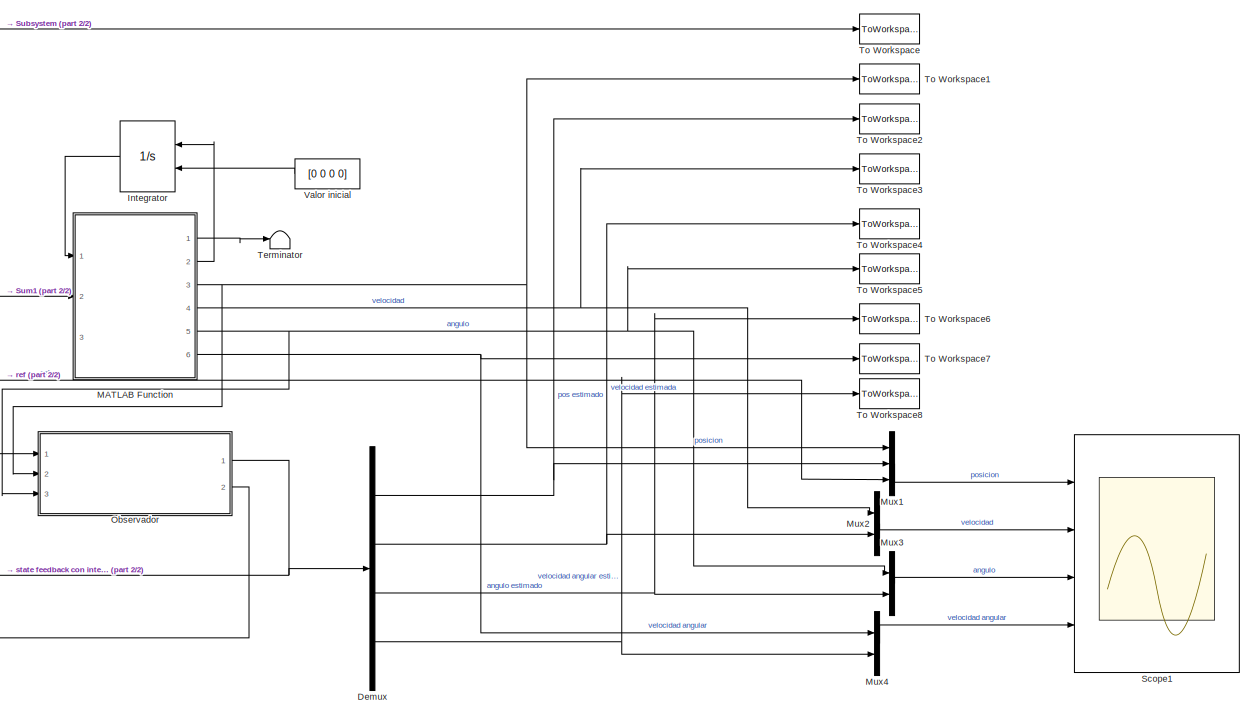
[diagram: root canvas - part 1/2, middle right region]
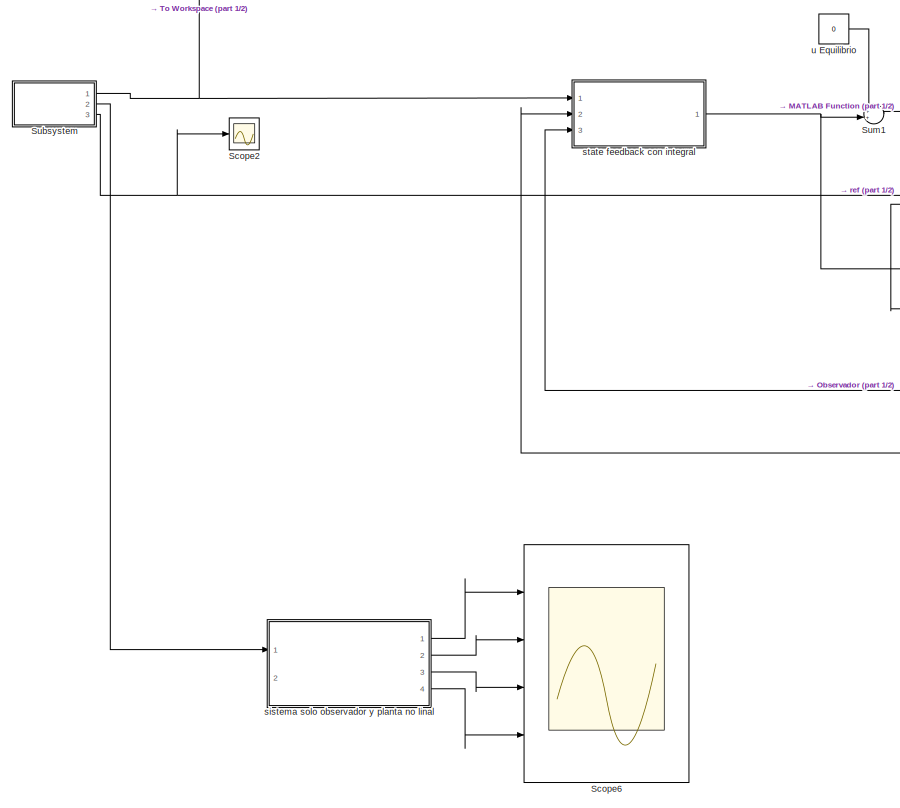
[diagram: root canvas - part 2/2, left side, full height]
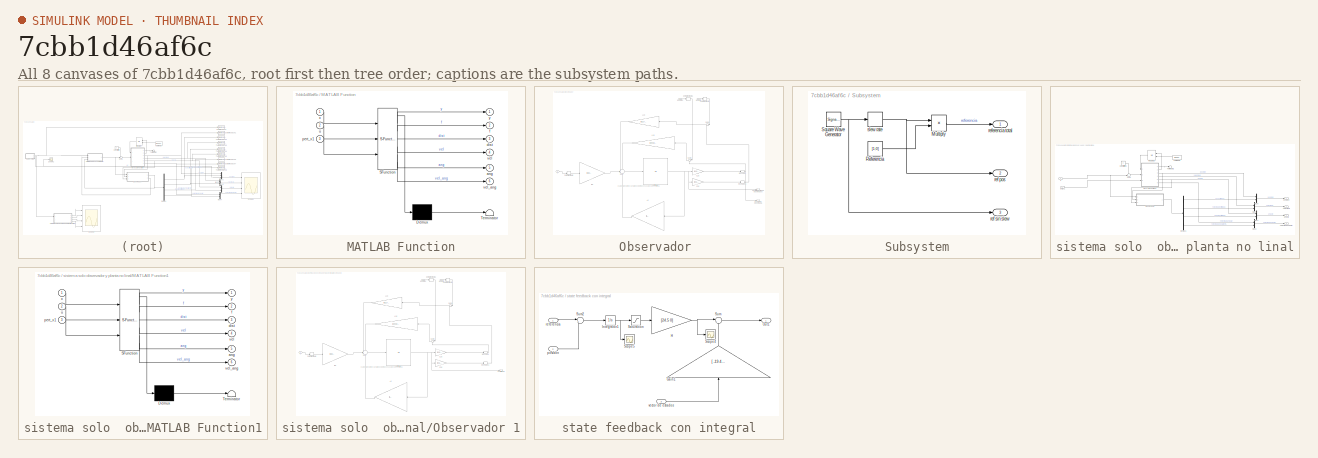
[diagram: thumbnail index - all 8 canvases of the model, root first then tree order]
MODEL slx_7cbb1d46af6c
KIND model
CONFIG AbsTol = auto
CONFIG EnableMultiTasking = off
CONFIG FixedStep = 0.02
CONFIG MaxStep = auto
CONFIG MinStep = auto
CONFIG RelTol = 1e-3
CONFIG SampleTimeConstraint = Unconstrained
CONFIG Solver = ode4
CONFIG SolverName = ode4
CONFIG StartTime = 0.0
CONFIG StopTime = 50
BLOCK [Demux] Demux
  Ports = [1, 4]
BLOCK [Integrator] Integrator
  InitialConditionSource = external
  Ports = [2, 1]
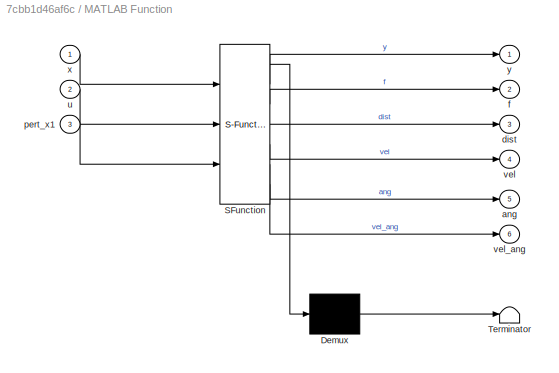
BLOCK [SubSystem] MATLAB Function
  ErrorFcn = Stateflow.Translate.translate
  PermitHierarchicalResolution = ExplicitOnly
  Ports = [3, 6]
  SFBlockType = MATLAB Function
  TreatAsAtomicUnit = on
BLOCK [Demux] MATLAB Function/ Demux 
  Outputs = 1
  Ports = [1, 1]
BLOCK [S-Function] MATLAB Function/ SFunction 
  EnableBusSupport = on
  FunctionName = sf_sfun
  PortCounts = [3 7]
  Ports = [3, 7]
  SFcnIsStateOwnerBlock = off
  SFunctionDeploymentMode = off
  Tag = Stateflow S-Function simulink_Feedback_integral2017 2
BLOCK [Terminator] MATLAB Function/ Terminator 
BLOCK [Outport] MATLAB Function/ang
  Port = 5
BLOCK [Outport] MATLAB Function/dist
  Port = 3
BLOCK [Outport] MATLAB Function/f
  Port = 2
BLOCK [Inport] MATLAB Function/pert_x1
  Port = 3
BLOCK [Inport] MATLAB Function/u
  Port = 2
BLOCK [Outport] MATLAB Function/vel
  Port = 4
BLOCK [Outport] MATLAB Function/vel_ang
  Port = 6
BLOCK [Inport] MATLAB Function/x
BLOCK [Outport] MATLAB Function/y
BLOCK [Mux] Mux1
  DisplayOption = bar
  Inputs = 3
  Ports = [3, 1]
BLOCK [Mux] Mux2
  DisplayOption = bar
  Inputs = 2
  Ports = [2, 1]
BLOCK [Mux] Mux3
  DisplayOption = bar
  Inputs = 2
  Ports = [2, 1]
BLOCK [Mux] Mux4
  DisplayOption = bar
  Inputs = 2
  Ports = [2, 1]
BLOCK [SubSystem] Observador 
  Ports = [3, 2]
BLOCK [Gain] Observador /Ad
  Gain = [ [ 1, 0.02, 0, 0 ];[ 0, 0.9238, 0.1756, 0 ];\n[ 0, 0, 1.0000, 0.0200 ]; [ 0, 0, -3.0896, 0.5852 ] ]
  Multiplication = Matrix(K*u)
BLOCK [Gain] Observador /Bd
  Gain = [0;0;0;1.2978]
  Multiplication = Matrix(K*u)
BLOCK [Gain] Observador /C1d
  Gain = [1 0 0 0]
  Multiplication = Matrix(K*u)
BLOCK [Gain] Observador /C2d
  Gain = [0 0 1 0]
  Multiplication = Matrix(K*u)
BLOCK [Gain] Observador /L1d
  Gain = [0;0.1756;0.6551;-2.4737]
BLOCK [Gain] Observador /L2d
  Gain = [0.9938;10.4178;0;0]
BLOCK [Reshape] Observador /Reshape
  Ports = [1, 1]
BLOCK [Reshape] Observador /Reshape1
  OutputDimensions = [1]
  Ports = [1, 1]
BLOCK [Sum] Observador /Sum
  Inputs = ++|+|+
  Ports = [4, 1]
BLOCK [Sum] Observador /Sum3
  Inputs = |+-
  Ports = [2, 1]
BLOCK [Sum] Observador /Sum4
  Inputs = |+-
  Ports = [2, 1]
BLOCK [UnitDelay] Observador /Unit Delay
  HasFrameUpgradeWarning = on
  SampleTime = 0.02
BLOCK [ZeroOrderHold] Observador /Zero-Order Hold
  SampleTime = 0.02
BLOCK [ZeroOrderHold] Observador /Zero-Order Hold1
  SampleTime = 0.02
BLOCK [ZeroOrderHold] Observador /Zero-Order Hold2
  SampleTime = 0.02
BLOCK [Inport] Observador /angulo
  Port = 3
BLOCK [Outport] Observador /poscición observada
  Port = 2
BLOCK [Inport] Observador /posicion
  Port = 2
BLOCK [Inport] Observador /u
BLOCK [Outport] Observador /vector de estados observados
BLOCK [Scope] Scope1
  Floating = off
  NumInputPorts = 4
  Ports = [4]
  ScopeSpecificationString = Simulink.scopes.TimeScopeBlockCfg('CurrentConfiguration', extmgr.ConfigurationSet(extmgr.Configuration('Core','General UI',true,'FigureColor',[0.8 0.8 0.8]),extmgr.Configuration('Core','Source UI',true),extmgr.Configuration('Sources','WiredSimulink',true,'DataLoggingVariableName','ScopeData1'),extmgr.Configuration('Visuals','Time Domain',true,'SerializedDisplays',{struct('MinYLimReal','-0.09984','...<+5064ch>
BLOCK [Scope] Scope2
  Floating = off
  NumInputPorts = 1
  Ports = [1]
  ScopeSpecificationString = Simulink.scopes.TimeScopeBlockCfg('CurrentConfiguration', extmgr.ConfigurationSet(extmgr.Configuration('Core','General UI',true),extmgr.Configuration('Core','Source UI',true),extmgr.Configuration('Sources','WiredSimulink',true,'DataLoggingVariableName','ScopeData2'),extmgr.Configuration('Visuals','Time Domain',true,'SerializedDisplays',{struct('MinYLimReal','-0.1','MaxYLimReal','0.1','YLabelReal',...<+1365ch>
BLOCK [Scope] Scope6
  Floating = off
  NumInputPorts = 4
  Ports = [4]
  ScopeSpecificationString = Simulink.scopes.TimeScopeBlockCfg('CurrentConfiguration', extmgr.ConfigurationSet(extmgr.Configuration('Core','General UI',true,'FigureColor',[0.8 0.8 0.8]),extmgr.Configuration('Core','Source UI',true),extmgr.Configuration('Sources','WiredSimulink',true,'DataLoggingVariableName','ScopeData2'),extmgr.Configuration('Visuals','Time Domain',true,'SerializedDisplays',{struct('MinYLimReal','-0.43859','...<+5040ch>
BLOCK [SubSystem] Subsystem
  Ports = [0, 3]
BLOCK [Product] Subsystem/Multiply
  Ports = [2, 1]
BLOCK [Constant] Subsystem/Referencia
  Value = [1;0]
BLOCK [SignalGenerator] Subsystem/Square Wave Generator
  Amplitude = -0.08
  Frequency = 0.125/2
  Ports = [0, 1]
  WaveForm = square
BLOCK [Outport] Subsystem/ref pos
  Port = 2
BLOCK [Outport] Subsystem/ref sin slew
  Port = 3
BLOCK [Outport] Subsystem/referencia total
BLOCK [RateLimiter] Subsystem/slew rate
  FallingSlewLimit = -1/0.002
  RisingSlewLimit = 1/0.002
  SampleTimeMode = inherited
BLOCK [Sum] Sum1
  Inputs = ++|
  Ports = [2, 1]
BLOCK [Terminator] Terminator
BLOCK [ToWorkspace] To Workspace
  FixptAsFi = on
  MaxDataPoints = inf
  Ports = [1]
  SampleTime = 0.02
  VariableName = ref
BLOCK [ToWorkspace] To Workspace1
  FixptAsFi = on
  MaxDataPoints = inf
  Ports = [1]
  SampleTime = 0.02
  VariableName = dist_real
BLOCK [ToWorkspace] To Workspace2
  FixptAsFi = on
  MaxDataPoints = inf
  Ports = [1]
  SampleTime = 0.02
  VariableName = dist_obs
BLOCK [ToWorkspace] To Workspace3
  FixptAsFi = on
  MaxDataPoints = inf
  Ports = [1]
  SampleTime = 0.02
  VariableName = vel_real
BLOCK [ToWorkspace] To Workspace4
  FixptAsFi = on
  MaxDataPoints = inf
  Ports = [1]
  SampleTime = 0.02
  VariableName = vel_obs
BLOCK [ToWorkspace] To Workspace5
  FixptAsFi = on
  MaxDataPoints = inf
  Ports = [1]
  SampleTime = 0.02
  VariableName = angulo_real
BLOCK [ToWorkspace] To Workspace6
  FixptAsFi = on
  MaxDataPoints = inf
  Ports = [1]
  SampleTime = 0.02
  VariableName = angulo_obs
BLOCK [ToWorkspace] To Workspace7
  FixptAsFi = on
  MaxDataPoints = inf
  Ports = [1]
  SampleTime = 0.02
  VariableName = velang_real
BLOCK [ToWorkspace] To Workspace8
  FixptAsFi = on
  MaxDataPoints = inf
  Ports = [1]
  SampleTime = 0.02
  VariableName = velang_obs
BLOCK [Constant] Valor inicial
  Value = [0 0 0 0]
BLOCK [SubSystem] sistema solo  observador y planta no linal
  Ports = [2, 4]
BLOCK [Demux] sistema solo  observador y planta no linal/Demux1
  Ports = [1, 4]
BLOCK [Integrator] sistema solo  observador y planta no linal/Integrator2
  InitialConditionSource = external
  Ports = [2, 1]
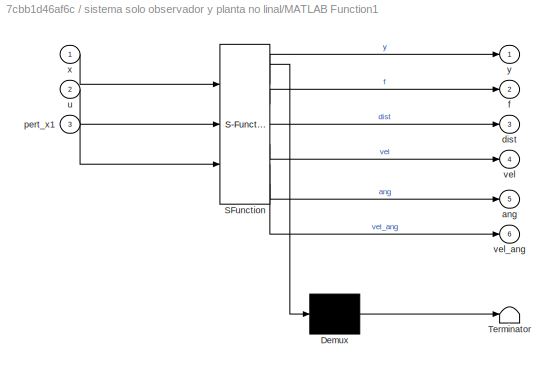
BLOCK [SubSystem] sistema solo  observador y planta no linal/MATLAB Function1
  ErrorFcn = Stateflow.Translate.translate
  PermitHierarchicalResolution = ExplicitOnly
  Ports = [3, 6]
  SFBlockType = MATLAB Function
  TreatAsAtomicUnit = on
BLOCK [Demux] sistema solo  observador y planta no linal/MATLAB Function1/ Demux 
  Outputs = 1
  Ports = [1, 1]
BLOCK [S-Function] sistema solo  observador y planta no linal/MATLAB Function1/ SFunction 
  EnableBusSupport = on
  FunctionName = sf_sfun
  PortCounts = [3 7]
  Ports = [3, 7]
  SFcnIsStateOwnerBlock = off
  SFunctionDeploymentMode = off
  Tag = Stateflow S-Function simulink_Feedback_integral2017 1
BLOCK [Terminator] sistema solo  observador y planta no linal/MATLAB Function1/ Terminator 
BLOCK [Outport] sistema solo  observador y planta no linal/MATLAB Function1/ang
  Port = 5
BLOCK [Outport] sistema solo  observador y planta no linal/MATLAB Function1/dist
  Port = 3
BLOCK [Outport] sistema solo  observador y planta no linal/MATLAB Function1/f
  Port = 2
BLOCK [Inport] sistema solo  observador y planta no linal/MATLAB Function1/pert_x1
  Port = 3
BLOCK [Inport] sistema solo  observador y planta no linal/MATLAB Function1/u
  Port = 2
BLOCK [Outport] sistema solo  observador y planta no linal/MATLAB Function1/vel
  Port = 4
BLOCK [Outport] sistema solo  observador y planta no linal/MATLAB Function1/vel_ang
  Port = 6
BLOCK [Inport] sistema solo  observador y planta no linal/MATLAB Function1/x
BLOCK [Outport] sistema solo  observador y planta no linal/MATLAB Function1/y
BLOCK [Mux] sistema solo  observador y planta no linal/Mux5
  DisplayOption = bar
  Inputs = 2
  Ports = [2, 1]
BLOCK [Mux] sistema solo  observador y planta no linal/Mux6
  DisplayOption = bar
  Inputs = 2
  Ports = [2, 1]
BLOCK [Mux] sistema solo  observador y planta no linal/Mux7
  DisplayOption = bar
  Inputs = 2
  Ports = [2, 1]
BLOCK [Mux] sistema solo  observador y planta no linal/Mux8
  DisplayOption = bar
  Inputs = 2
  Ports = [2, 1]
BLOCK [SubSystem] sistema solo  observador y planta no linal/Observador 1
  Ports = [3, 1]
BLOCK [Gain] sistema solo  observador y planta no linal/Observador 1/Ad
  Gain = [ [ 1, 0.02, 0, 0 ];[ 0, 0.9238, 0.1756, 0 ];\n[ 0, 0, 1.0000, 0.0200 ]; [ 0, 0, -3.0896, 0.5852 ] ]
  Multiplication = Matrix(K*u)
BLOCK [Gain] sistema solo  observador y planta no linal/Observador 1/Bd
  Gain = [0;0;0;1.2978]
  Multiplication = Matrix(K*u)
BLOCK [Gain] sistema solo  observador y planta no linal/Observador 1/C1d
  Gain = [1 0 0 0]
  Multiplication = Matrix(K*u)
BLOCK [Gain] sistema solo  observador y planta no linal/Observador 1/C2d
  Gain = [0 0 1 0]
  Multiplication = Matrix(K*u)
BLOCK [Gain] sistema solo  observador y planta no linal/Observador 1/L1d
  Gain = [0;0.1756;0.6551;-2.4737]
BLOCK [Gain] sistema solo  observador y planta no linal/Observador 1/L2d
  Gain = [0.9938;10.4178;0;0]
BLOCK [Reshape] sistema solo  observador y planta no linal/Observador 1/Reshape
  Ports = [1, 1]
BLOCK [Reshape] sistema solo  observador y planta no linal/Observador 1/Reshape1
  OutputDimensions = [1]
  Ports = [1, 1]
BLOCK [Sum] sistema solo  observador y planta no linal/Observador 1/Sum
  Inputs = ++|+|+
  Ports = [4, 1]
BLOCK [Sum] sistema solo  observador y planta no linal/Observador 1/Sum3
  Inputs = |+-
  Ports = [2, 1]
BLOCK [Sum] sistema solo  observador y planta no linal/Observador 1/Sum4
  Inputs = |+-
  Ports = [2, 1]
BLOCK [UnitDelay] sistema solo  observador y planta no linal/Observador 1/Unit Delay
  HasFrameUpgradeWarning = on
  SampleTime = 0.02
BLOCK [ZeroOrderHold] sistema solo  observador y planta no linal/Observador 1/Zero-Order Hold
  SampleTime = 0.02
BLOCK [ZeroOrderHold] sistema solo  observador y planta no linal/Observador 1/Zero-Order Hold1
  SampleTime = 0.02
BLOCK [ZeroOrderHold] sistema solo  observador y planta no linal/Observador 1/Zero-Order Hold2
  SampleTime = 0.02
BLOCK [Inport] sistema solo  observador y planta no linal/Observador 1/angulo
  Port = 3
BLOCK [Inport] sistema solo  observador y planta no linal/Observador 1/posicion
  Port = 2
BLOCK [Inport] sistema solo  observador y planta no linal/Observador 1/u
BLOCK [Outport] sistema solo  observador y planta no linal/Observador 1/x estimada
BLOCK [Sum] sistema solo  observador y planta no linal/Sum4
  Inputs = ++|
  Ports = [2, 1]
BLOCK [Terminator] sistema solo  observador y planta no linal/Terminator1
BLOCK [Constant] sistema solo  observador y planta no linal/Valor inicial1
  Value = [0 0 0 0]
BLOCK [Outport] sistema solo  observador y planta no linal/angulo
  Port = 3
BLOCK [Inport] sistema solo  observador y planta no linal/pert_x1
  Port = 2
BLOCK [Outport] sistema solo  observador y planta no linal/posicion
BLOCK [Inport] sistema solo  observador y planta no linal/u
BLOCK [Constant] sistema solo  observador y planta no linal/u Equilibrio1
  Value = 0
BLOCK [Outport] sistema solo  observador y planta no linal/velocidad
  Port = 2
BLOCK [Outport] sistema solo  observador y planta no linal/velocidad angular
  Port = 4
BLOCK [SubSystem] state feedback con integral
  Ports = [3, 1]
BLOCK [Gain] state feedback con integral/Gain1
  Gain = [ -19.4825, -3.4280, -3.4748, -0.1752 ]
  Multiplication = Matrix(K*u)
BLOCK [Gain] state feedback con integral/H
  Gain = [24.5 0]
  Multiplication = Matrix(K*u)
BLOCK [Integrator] state feedback con integral/Integrator1
  Ports = [1, 1]
BLOCK [Outport] state feedback con integral/Out1
BLOCK [Saturate] state feedback con integral/Saturation
  LowerLimit = -2.4
  UpperLimit = 2.4
BLOCK [Scope] state feedback con integral/Scope4
  Floating = off
  NumInputPorts = 1
  Ports = [1]
  ScopeSpecificationString = Simulink.scopes.TimeScopeBlockCfg('CurrentConfiguration', extmgr.ConfigurationSet(extmgr.Configuration('Core','General UI',true),extmgr.Configuration('Core','Source UI',true),extmgr.Configuration('Sources','WiredSimulink',true,'DataLoggingVariableName','ScopeData2'),extmgr.Configuration('Visuals','Time Domain',true,'SerializedDisplays',{struct('MinYLimReal','-1.94612','MaxYLimReal','1.94794','YLab...<+1387ch>
BLOCK [Scope] state feedback con integral/Scope5
  Floating = off
  NumInputPorts = 1
  Ports = [1]
  ScopeSpecificationString = Simulink.scopes.TimeScopeBlockCfg('CurrentConfiguration', extmgr.ConfigurationSet(extmgr.Configuration('Core','General UI',true),extmgr.Configuration('Core','Source UI',true),extmgr.Configuration('Sources','WiredSimulink',true,'DataLoggingVariableName','ScopeData1'),extmgr.Configuration('Visuals','Time Domain',true,'SerializedDisplays',{struct('MinYLimReal','-0.39394','MaxYLimReal','0.11445','YLab...<+1415ch>
BLOCK [Sum] state feedback con integral/Sum
  Inputs = |++
  Ports = [2, 1]
BLOCK [Sum] state feedback con integral/Sum2
  Inputs = |+-
  Ports = [2, 1]
BLOCK [Inport] state feedback con integral/posición
  Port = 2
BLOCK [Inport] state feedback con integral/referencia
BLOCK [Inport] state feedback con integral/vector de estados
  Port = 3
BLOCK [Constant] u Equilibrio
  Value = 0
ANNOTATION Observador : usa foward euler pq ya está todo dicreto, no es una función continua
ANNOTATION sistema solo  observador y planta no linal/Observador 1: usa foward euler pq ya está todo dicreto, no es una función continua
NET Demux:1 -> Mux1:2, To Workspace2:1
NET Demux:2 -> Mux2:2, To Workspace4:1
NET Demux:3 -> Mux3:2, To Workspace6:1
NET Demux:4 -> Mux4:2, To Workspace8:1
LINE Integrator:1 -> MATLAB Function:1
LINE MATLAB Function:1 -> Terminator:1
LINE MATLAB Function:2 -> Integrator:1
NET MATLAB Function:3 -> Mux1:1, Observador :2, To Workspace1:1
NET MATLAB Function:4 -> Mux2:1, To Workspace3:1
NET MATLAB Function:5 -> Mux3:1, Observador :3, To Workspace5:1
NET MATLAB Function:6 -> Mux4:1, To Workspace7:1
LINE Mux1:1 -> Scope1:1
LINE Mux2:1 -> Scope1:2
LINE Mux3:1 -> Scope1:3
LINE Mux4:1 -> Scope1:4
LINE Observador /Ad:1 -> Observador /Sum:4
LINE Observador /Bd:1 -> Observador /Sum:3
LINE Observador /C1d:1 -> Observador /Reshape:1
LINE Observador /C2d:1 -> Observador /Reshape1:1
LINE Observador /L1d:1 -> Observador /Sum:2
LINE Observador /L2d:1 -> Observador /Sum:1
LINE Observador /Reshape1:1 -> Observador /Sum4:2
NET Observador /Reshape:1 -> Observador /Sum3:2, Observador /poscición observada:1
LINE Observador /Sum3:1 -> Observador /L2d:1
LINE Observador /Sum4:1 -> Observador /L1d:1
LINE Observador /Sum:1 -> Observador /Unit Delay:1
NET Observador /Unit Delay:1 -> Observador /Ad:1, Observador /C1d:1, Observador /C2d:1, Observador /vector de estados observados:1
LINE Observador /Zero-Order Hold1:1 -> Observador /Sum3:1
LINE Observador /Zero-Order Hold2:1 -> Observador /Sum4:1
LINE Observador /Zero-Order Hold:1 -> Observador /Bd:1
LINE Observador /angulo:1 -> Observador /Zero-Order Hold2:1
LINE Observador /posicion:1 -> Observador /Zero-Order Hold1:1
LINE Observador /u:1 -> Observador /Zero-Order Hold:1
NET Observador :1 -> Demux:1, state feedback con integral:3
LINE Observador :2 -> state feedback con integral:2
LINE Subsystem/Multiply:1 -> Subsystem/referencia total:1
LINE Subsystem/Referencia:1 -> Subsystem/Multiply:2
NET Subsystem/Square Wave Generator:1 -> Subsystem/ref sin slew:1, Subsystem/slew rate:1
NET Subsystem/slew rate:1 -> Subsystem/Multiply:1, Subsystem/ref pos:1
NET Subsystem:1 -> To Workspace:1, state feedback con integral:1
LINE Subsystem:2 -> sistema solo  observador y planta no linal:1
NET Subsystem:3 -> Mux1:3, Scope2:1
LINE Sum1:1 -> MATLAB Function:2
LINE Valor inicial:1 -> Integrator:2
LINE sistema solo  observador y planta no linal/Demux1:1 -> sistema solo  observador y planta no linal/Mux5:2
LINE sistema solo  observador y planta no linal/Demux1:2 -> sistema solo  observador y planta no linal/Mux6:2
LINE sistema solo  observador y planta no linal/Demux1:3 -> sistema solo  observador y planta no linal/Mux7:2
LINE sistema solo  observador y planta no linal/Demux1:4 -> sistema solo  observador y planta no linal/Mux8:2
LINE sistema solo  observador y planta no linal/Integrator2:1 -> sistema solo  observador y planta no linal/MATLAB Function1:1
LINE sistema solo  observador y planta no linal/MATLAB Function1:1 -> sistema solo  observador y planta no linal/Terminator1:1
LINE sistema solo  observador y planta no linal/MATLAB Function1:2 -> sistema solo  observador y planta no linal/Integrator2:1
NET sistema solo  observador y planta no linal/MATLAB Function1:3 -> sistema solo  observador y planta no linal/Mux5:1, sistema solo  observador y planta no linal/Observador 1:2
LINE sistema solo  observador y planta no linal/MATLAB Function1:4 -> sistema solo  observador y planta no linal/Mux6:1
NET sistema solo  observador y planta no linal/MATLAB Function1:5 -> sistema solo  observador y planta no linal/Mux7:1, sistema solo  observador y planta no linal/Observador 1:3
LINE sistema solo  observador y planta no linal/MATLAB Function1:6 -> sistema solo  observador y planta no linal/Mux8:1
LINE sistema solo  observador y planta no linal/Mux5:1 -> sistema solo  observador y planta no linal/posicion:1
LINE sistema solo  observador y planta no linal/Mux6:1 -> sistema solo  observador y planta no linal/velocidad:1
LINE sistema solo  observador y planta no linal/Mux7:1 -> sistema solo  observador y planta no linal/angulo:1
LINE sistema solo  observador y planta no linal/Mux8:1 -> sistema solo  observador y planta no linal/velocidad angular:1
LINE sistema solo  observador y planta no linal/Observador 1/Ad:1 -> sistema solo  observador y planta no linal/Observador 1/Sum:4
LINE sistema solo  observador y planta no linal/Observador 1/Bd:1 -> sistema solo  observador y planta no linal/Observador 1/Sum:3
LINE sistema solo  observador y planta no linal/Observador 1/C1d:1 -> sistema solo  observador y planta no linal/Observador 1/Reshape:1
LINE sistema solo  observador y planta no linal/Observador 1/C2d:1 -> sistema solo  observador y planta no linal/Observador 1/Reshape1:1
LINE sistema solo  observador y planta no linal/Observador 1/L1d:1 -> sistema solo  observador y planta no linal/Observador 1/Sum:2
LINE sistema solo  observador y planta no linal/Observador 1/L2d:1 -> sistema solo  observador y planta no linal/Observador 1/Sum:1
LINE sistema solo  observador y planta no linal/Observador 1/Reshape1:1 -> sistema solo  observador y planta no linal/Observador 1/Sum4:2
LINE sistema solo  observador y planta no linal/Observador 1/Reshape:1 -> sistema solo  observador y planta no linal/Observador 1/Sum3:2
LINE sistema solo  observador y planta no linal/Observador 1/Sum3:1 -> sistema solo  observador y planta no linal/Observador 1/L2d:1
LINE sistema solo  observador y planta no linal/Observador 1/Sum4:1 -> sistema solo  observador y planta no linal/Observador 1/L1d:1
LINE sistema solo  observador y planta no linal/Observador 1/Sum:1 -> sistema solo  observador y planta no linal/Observador 1/Unit Delay:1
NET sistema solo  observador y planta no linal/Observador 1/Unit Delay:1 -> sistema solo  observador y planta no linal/Observador 1/Ad:1, sistema solo  observador y planta no linal/Observador 1/C1d:1, sistema solo  observador y planta no linal/Observador 1/C2d:1, sistema solo  observador y planta no linal/Observador 1/x estimada:1
LINE sistema solo  observador y planta no linal/Observador 1/Zero-Order Hold1:1 -> sistema solo  observador y planta no linal/Observador 1/Sum3:1
LINE sistema solo  observador y planta no linal/Observador 1/Zero-Order Hold2:1 -> sistema solo  observador y planta no linal/Observador 1/Sum4:1
LINE sistema solo  observador y planta no linal/Observador 1/Zero-Order Hold:1 -> sistema solo  observador y planta no linal/Observador 1/Bd:1
LINE sistema solo  observador y planta no linal/Observador 1/angulo:1 -> sistema solo  observador y planta no linal/Observador 1/Zero-Order Hold2:1
LINE sistema solo  observador y planta no linal/Observador 1/posicion:1 -> sistema solo  observador y planta no linal/Observador 1/Zero-Order Hold1:1
LINE sistema solo  observador y planta no linal/Observador 1/u:1 -> sistema solo  observador y planta no linal/Observador 1/Zero-Order Hold:1
LINE sistema solo  observador y planta no linal/Observador 1:1 -> sistema solo  observador y planta no linal/Demux1:1
LINE sistema solo  observador y planta no linal/Sum4:1 -> sistema solo  observador y planta no linal/MATLAB Function1:2
LINE sistema solo  observador y planta no linal/Valor inicial1:1 -> sistema solo  observador y planta no linal/Integrator2:2
LINE sistema solo  observador y planta no linal/pert_x1:1 -> sistema solo  observador y planta no linal/MATLAB Function1:3
LINE sistema solo  observador y planta no linal/u Equilibrio1:1 -> sistema solo  observador y planta no linal/Sum4:1
NET sistema solo  observador y planta no linal/u:1 -> sistema solo  observador y planta no linal/Observador 1:1, sistema solo  observador y planta no linal/Sum4:2
LINE sistema solo  observador y planta no linal:1 -> Scope6:1
LINE sistema solo  observador y planta no linal:2 -> Scope6:2
LINE sistema solo  observador y planta no linal:3 -> Scope6:3
LINE sistema solo  observador y planta no linal:4 -> Scope6:4
LINE state feedback con integral/Gain1:1 -> state feedback con integral/Sum:2
NET state feedback con integral/H:1 -> state feedback con integral/Scope4:1, state feedback con integral/Sum:1
NET state feedback con integral/Integrator1:1 -> state feedback con integral/Saturation:1, state feedback con integral/Scope5:1
LINE state feedback con integral/Saturation:1 -> state feedback con integral/H:1
LINE state feedback con integral/Sum2:1 -> state feedback con integral/Integrator1:1
LINE state feedback con integral/Sum:1 -> state feedback con integral/Out1:1
LINE state feedback con integral/posición:1 -> state feedback con integral/Sum2:2
LINE state feedback con integral/referencia:1 -> state feedback con integral/Sum2:1
LINE state feedback con integral/vector de estados:1 -> state feedback con integral/Gain1:1
NET state feedback con integral:1 -> Observador :1, Sum1:2
LINE u Equilibrio:1 -> Sum1:1
note: NET lines group one-source signal fan-out (src -> all destinations, sorted); 1:1 wires keep LINE
CHART sistema solo  observador y planta no linal/MATLAB Function1 states=1 transitions=1
  STATE_LABEL 'eML_blk_kernel()'
  STATE_LABEL 'SCRIPT:\nfunction [y, f,dist,vel,ang,vel_ang] = fcn(x, u, pert_x1)\n    \n    g = 9.81; %kg m/s2\n    m = 0.047; %kg\n    kv = 0.2;\n    R = 0.02;\n    mr = 0.00275;\n    J = 0.5*4*mr*power(R,2);\n    \n    x(1) = x(1) + pert_x1;\n\n    %Dinamica\n    f1 = x(2);\n    f2 = (m*g*sin(x(3)) - kv * x(2)) * 1/(m + (J/power(R,2)));\n    f3 = x(4);\n    f4 = -20.73 * x(4) - 154.47*x(3) + u * 64.89;\n\n    y = x(1);\n    f =...<+80ch>'
CHART MATLAB Function states=1 transitions=1
  STATE_LABEL 'eML_blk_kernel()'
  STATE_LABEL 'SCRIPT:\nfunction [y, f,dist,vel,ang,vel_ang] = fcn(x, u, pert_x1)\n    \n    g = 9.81; %kg m/s2\n    m = 0.047; %kg\n    kv = 0.2;\n    R = 0.02;\n    mr = 0.00275;\n    J = 0.5*4*mr*power(R,2);\n    \n    x(1) = x(1) + pert_x1;\n\n    %Dinamica\n    f1 = x(2);\n    f2 = (m*g*sin(x(3)) - kv * x(2)) * 1/(m + (J/power(R,2)));\n    f3 = x(4);\n    f4 = -20.73 * x(4) - 154.47*x(3) + u * 64.89;\n\n    y = x(1);\n    f =...<+80ch>'
